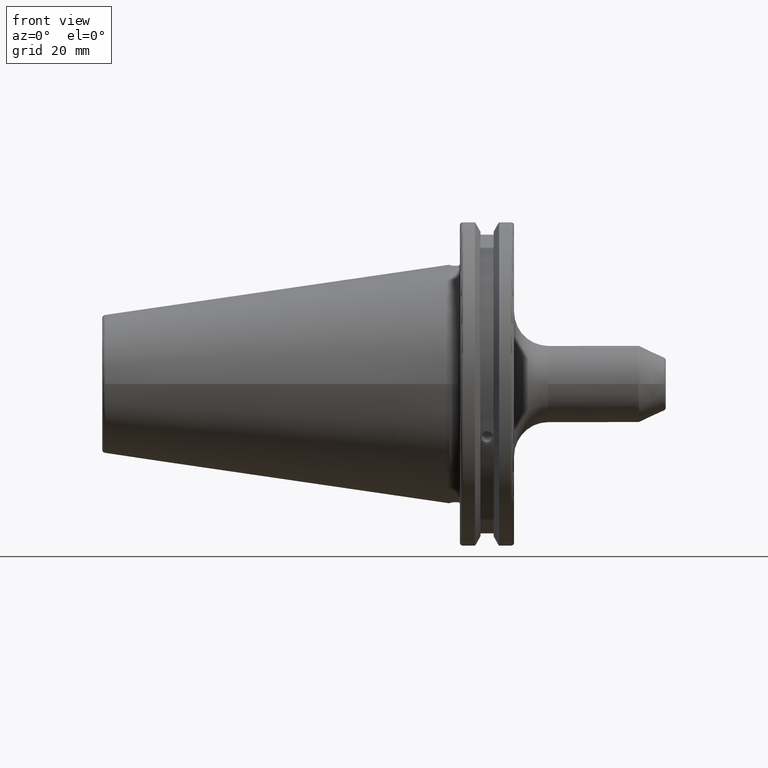
[diagram: clean part render]
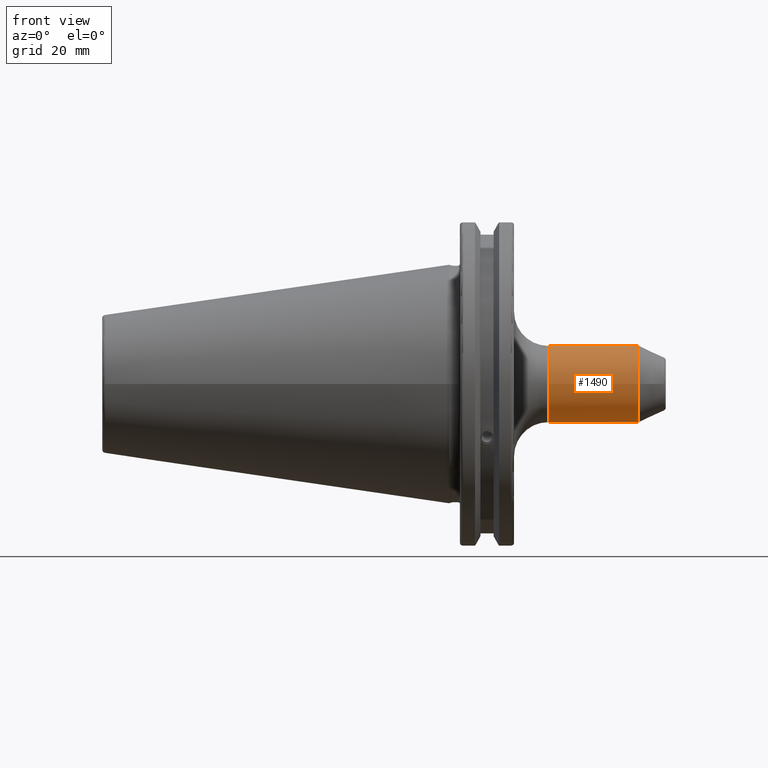
[diagram: same view with one face highlighted and labeled with its STEP entity id]
A machine part, front view. The second image highlights one B-rep face of the part: STEP entity #1490.
In plain terms, the highlighted cylindrical surface (bore or boss wall) has radius 11.176 mm, axis along (1, 0, 0).
Its self-contained STEP definition (entity closure, byte-faithful):
#45=CYLINDRICAL_SURFACE('',#1615,11.176);
#72=FACE_BOUND('',#224,.T.);
#134=FACE_OUTER_BOUND('',#223,.T.);
#223=EDGE_LOOP('',(#1047,#1048,#1049,#1050,#1051,#1052));
#224=EDGE_LOOP('',(#1053,#1054));
#319=B_SPLINE_CURVE_WITH_KNOTS('',3,(#2190,#2191,#2192,#2193,#2194,#2195,
#2196,#2197,#2198,#2199,#2200,#2201,#2202,#2203,#2204,#2205,#2206,#2207,
#2208,#2209,#2210,#2211,#2212,#2213,#2214,#2215),.UNSPECIFIED.,.F.,.F.,
(4,2,2,2,2,2,2,2,2,2,2,2,4),(0.,0.160450408590257,0.320900817180515,0.488377285899143,
0.655853754617772,0.8233302233364,0.990806692055029,1.15125710064529,1.31170750923554,
1.4721579178258,1.63260832641606,1.80008479513469,1.96756126385332),
 .UNSPECIFIED.);
#320=B_SPLINE_CURVE_WITH_KNOTS('',3,(#2216,#2217,#2218,#2219,#2220,#2221,
#2222,#2223,#2224,#2225),.UNSPECIFIED.,.F.,.F.,(4,2,2,2,4),(1.96756126385332,
2.13503773257194,2.30251420129057,2.46296460988083,2.62341501847109),
 .UNSPECIFIED.);
#365=LINE('',#2312,#457);
#457=VECTOR('',#1813,11.176);
#557=CIRCLE('',#1610,11.176);
#558=CIRCLE('',#1611,11.176);
#561=CIRCLE('',#1616,11.176);
#562=CIRCLE('',#1617,11.176);
#624=VERTEX_POINT('',#2187);
#625=VERTEX_POINT('',#2189);
#637=VERTEX_POINT('',#2299);
#638=VERTEX_POINT('',#2301);
#641=VERTEX_POINT('',#2311);
#642=VERTEX_POINT('',#2313);
#780=EDGE_CURVE('',#625,#624,#319,.T.);
#781=EDGE_CURVE('',#624,#625,#320,.T.);
#797=EDGE_CURVE('',#637,#638,#557,.T.);
#798=EDGE_CURVE('',#638,#637,#558,.T.);
#802=EDGE_CURVE('',#638,#641,#365,.T.);
#803=EDGE_CURVE('',#642,#641,#561,.T.);
#804=EDGE_CURVE('',#641,#642,#562,.T.);
#1047=ORIENTED_EDGE('',*,*,#798,.F.);
#1048=ORIENTED_EDGE('',*,*,#802,.T.);
#1049=ORIENTED_EDGE('',*,*,#803,.F.);
#1050=ORIENTED_EDGE('',*,*,#804,.F.);
#1051=ORIENTED_EDGE('',*,*,#802,.F.);
#1052=ORIENTED_EDGE('',*,*,#797,.F.);
#1053=ORIENTED_EDGE('',*,*,#780,.T.);
#1054=ORIENTED_EDGE('',*,*,#781,.T.);
#1490=ADVANCED_FACE('',(#134,#72),#45,.T.);
#1610=AXIS2_PLACEMENT_3D('',#2302,#1800,#1801);
#1611=AXIS2_PLACEMENT_3D('',#2303,#1802,#1803);
#1615=AXIS2_PLACEMENT_3D('',#2310,#1811,#1812);
#1616=AXIS2_PLACEMENT_3D('',#2314,#1814,#1815);
#1617=AXIS2_PLACEMENT_3D('',#2315,#1816,#1817);
#1800=DIRECTION('center_axis',(1.,0.,0.));
#1801=DIRECTION('ref_axis',(0.,-1.,1.83697019872103E-16));
#1802=DIRECTION('center_axis',(1.,0.,0.));
#1803=DIRECTION('ref_axis',(0.,-1.,1.83697019872103E-16));
#1811=DIRECTION('center_axis',(1.,0.,0.));
#1812=DIRECTION('ref_axis',(0.,1.,0.));
#1813=DIRECTION('',(-1.,0.,0.));
#1814=DIRECTION('center_axis',(-1.,0.,0.));
#1815=DIRECTION('ref_axis',(0.,-1.,-1.22464679914735E-16));
#1816=DIRECTION('center_axis',(-1.,0.,0.));
#1817=DIRECTION('ref_axis',(0.,-1.,-1.22464679914735E-16));
#2187=CARTESIAN_POINT('',(42.83,11.176,5.71910055201813E-16));
#2189=CARTESIAN_POINT('',(47.5,10.4550468618303,-3.94904686183032));
#2190=CARTESIAN_POINT('Ctrl Pts',(47.5,10.4550468618303,-3.94904686183032));
#2191=CARTESIAN_POINT('Ctrl Pts',(48.0348346953009,10.4550468618303,-3.94904686183032));
#2192=CARTESIAN_POINT('Ctrl Pts',(48.6107148867072,10.4878494051715,-3.86556716131248));
#2193=CARTESIAN_POINT('Ctrl Pts',(49.6953377323191,10.6107140420064,-3.51430576885845));
#2194=CARTESIAN_POINT('Ctrl Pts',(50.2042921149984,10.6991887742038,-3.2466244540956));
#2195=CARTESIAN_POINT('Ctrl Pts',(51.061255264068,10.8768578052469,-2.59172543091553));
#2196=CARTESIAN_POINT('Ctrl Pts',(51.4649669839639,10.979393649552,-2.14936439188367));
#2197=CARTESIAN_POINT('Ctrl Pts',(52.019887693397,11.1302692360648,-1.13312111218164));
#2198=CARTESIAN_POINT('Ctrl Pts',(52.17,11.176,-0.558254895728761));
#2199=CARTESIAN_POINT('Ctrl Pts',(52.17,11.176,0.558254895728761));
#2200=CARTESIAN_POINT('Ctrl Pts',(52.019887693397,11.1302692360648,1.13312111218163));
#2201=CARTESIAN_POINT('Ctrl Pts',(51.4649669839639,10.979393649552,2.14936439188366));
#2202=CARTESIAN_POINT('Ctrl Pts',(51.061255264068,10.8768578052469,2.59172543091553));
#2203=CARTESIAN_POINT('Ctrl Pts',(50.2042921149984,10.6991887742038,3.2466244540956));
#2204=CARTESIAN_POINT('Ctrl Pts',(49.6953377323191,10.6107140420064,3.51430576885845));
#2205=CARTESIAN_POINT('Ctrl Pts',(48.6107148867072,10.4878494051715,3.86556716131248));
#2206=CARTESIAN_POINT('Ctrl Pts',(48.0348346953008,10.4550468618303,3.94904686183032));
#2207=CARTESIAN_POINT('Ctrl Pts',(46.9651653046991,10.4550468618303,3.94904686183032));
#2208=CARTESIAN_POINT('Ctrl Pts',(46.3892851132928,10.4878494051715,3.86556716131248));
#2209=CARTESIAN_POINT('Ctrl Pts',(45.3046622676809,10.6107140420064,3.51430576885845));
#2210=CARTESIAN_POINT('Ctrl Pts',(44.7957078850016,10.6991887742038,3.2466244540956));
#2211=CARTESIAN_POINT('Ctrl Pts',(43.938744735932,10.8768578052469,2.59172543091553));
#2212=CARTESIAN_POINT('Ctrl Pts',(43.535033016036,10.979393649552,2.14936439188367));
#2213=CARTESIAN_POINT('Ctrl Pts',(42.9801123066029,11.1302692360648,1.13312111218164));
#2214=CARTESIAN_POINT('Ctrl Pts',(42.83,11.176,0.558254895728761));
#2215=CARTESIAN_POINT('Ctrl Pts',(42.83,11.176,-2.77555756156289E-16));
#2216=CARTESIAN_POINT('Ctrl Pts',(42.83,11.176,1.87350135405495E-15));
#2217=CARTESIAN_POINT('Ctrl Pts',(42.83,11.176,-0.55825489572876));
#2218=CARTESIAN_POINT('Ctrl Pts',(42.9801123066029,11.1302692360648,-1.13312111218164));
#2219=CARTESIAN_POINT('Ctrl Pts',(43.535033016036,10.979393649552,-2.14936439188367));
#2220=CARTESIAN_POINT('Ctrl Pts',(43.938744735932,10.8768578052469,-2.59172543091553));
#2221=CARTESIAN_POINT('Ctrl Pts',(44.7957078850016,10.6991887742038,-3.2466244540956));
#2222=CARTESIAN_POINT('Ctrl Pts',(45.3046622676809,10.6107140420064,-3.51430576885845));
#2223=CARTESIAN_POINT('Ctrl Pts',(46.3892851132928,10.4878494051715,-3.86556716131248));
#2224=CARTESIAN_POINT('Ctrl Pts',(46.9651653046991,10.4550468618303,-3.94904686183032));
#2225=CARTESIAN_POINT('Ctrl Pts',(47.5,10.4550468618303,-3.94904686183032));
#2299=CARTESIAN_POINT('',(55.3950978975639,-1.36866526272708E-15,11.176));
#2301=CARTESIAN_POINT('',(55.3950978975639,-11.176,-1.36866526272708E-15));
#2302=CARTESIAN_POINT('Origin',(55.3950978975639,0.,0.));
#2303=CARTESIAN_POINT('Origin',(55.3950978975639,0.,0.));
#2310=CARTESIAN_POINT('Origin',(37.3333962801034,0.,0.));
#2311=CARTESIAN_POINT('',(29.05,-11.176,-1.36866526272708E-15));
#2312=CARTESIAN_POINT('',(37.3333962801034,-11.176,-1.36866526272708E-15));
#2313=CARTESIAN_POINT('',(29.05,-1.36866526272708E-15,-11.176));
#2314=CARTESIAN_POINT('Origin',(29.05,0.,0.));
#2315=CARTESIAN_POINT('Origin',(29.05,0.,0.));